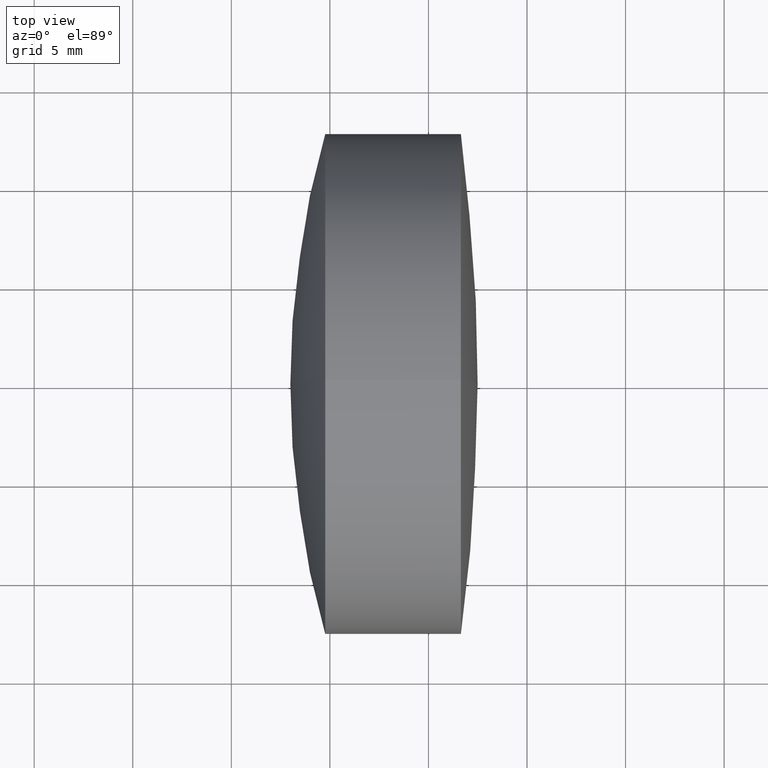
[diagram: clean part render]
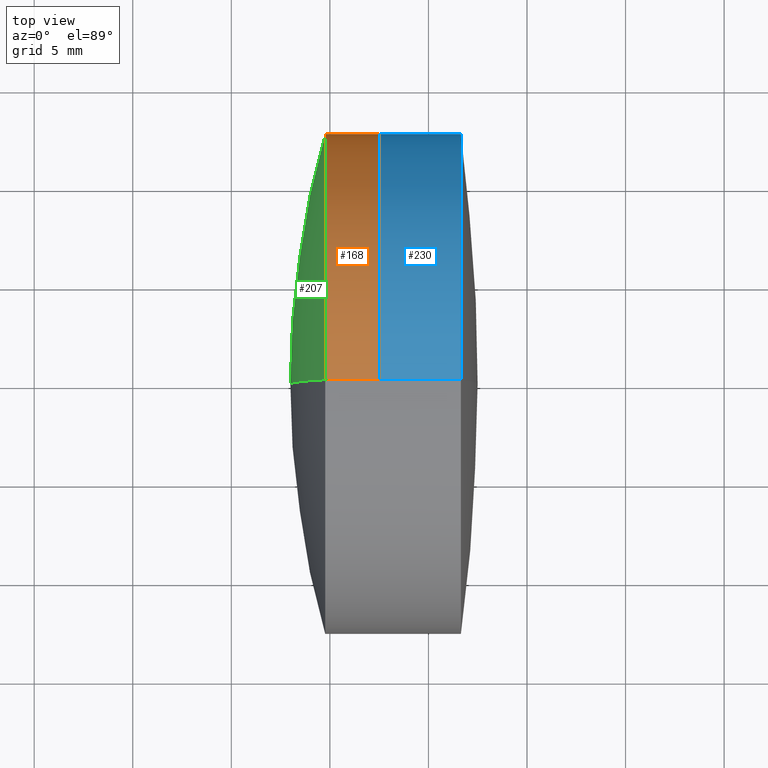
[diagram: same view with three faces highlighted in distinct colors, each labeled with its STEP entity id]
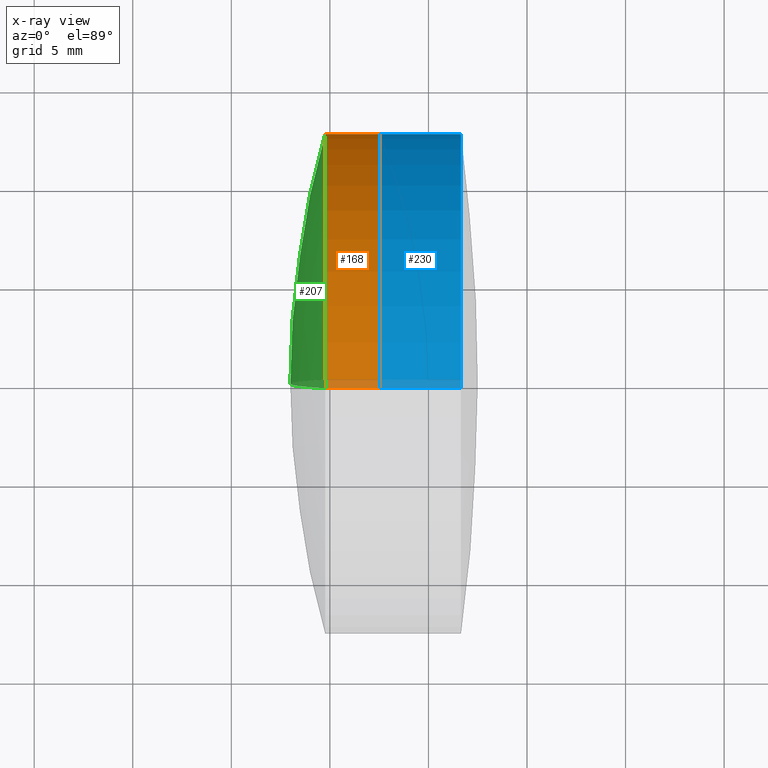
[diagram: x-ray of the same camera — body ghosted, the three highlighted faces saturated]
A machine part, top view with three faces highlighted in distinct colors.
The next image is the same camera in x-ray (body ghosted, the three faces saturated) — at least one of them is partly hidden behind the body in this view.
Their STEP definitions:

[orange] entity #168 — the highlighted cylindrical surface (partial cylindrical patch) has radius 12.7 mm, axis along (-1, -0, -0).
#3 = EDGE_LOOP ( 'NONE', ( #334, #54, #169, #271 ) ) ;
#6 = DIRECTION ( 'NONE',  ( -1.000000000000000000, -0.0000000000000000000, -0.0000000000000000000 ) ) ;
#27 = DIRECTION ( 'NONE',  ( 0.0000000000000000000, 0.0000000000000000000, 1.000000000000000000 ) ) ;
#40 = CARTESIAN_POINT ( 'NONE',  ( 161.8331716928335000, 0.0000000000000000000, 0.0000000000000000000 ) ) ;
#47 = LINE ( 'NONE', #77, #110 ) ;
#54 = ORIENTED_EDGE ( 'NONE', *, *, #235, .T. ) ;
#74 = EDGE_CURVE ( 'NONE', #224, #307, #186, .T. ) ;
#77 = CARTESIAN_POINT ( 'NONE',  ( 161.8331716928335000, 1.555301434917138000E-015, -12.69999999999999600 ) ) ;
#82 = EDGE_CURVE ( 'NONE', #259, #224, #179, .T. ) ;
#87 = DIRECTION ( 'NONE',  ( -1.000000000000000000, -0.0000000000000000000, -0.0000000000000000000 ) ) ;
#91 = FACE_OUTER_BOUND ( 'NONE', #3, .T. ) ;
#97 = CARTESIAN_POINT ( 'NONE',  ( 239.7637544197977200, 0.0000000000000000000, 0.0000000000000000000 ) ) ;
#108 = CARTESIAN_POINT ( 'NONE',  ( 242.5270405041353300, 1.555301434917138000E-015, -12.69999999999999600 ) ) ;
#110 = VECTOR ( 'NONE', #128, 1000.000000000000000 ) ;
#114 = AXIS2_PLACEMENT_3D ( 'NONE', #184, #346, #27 ) ;
#122 = CARTESIAN_POINT ( 'NONE',  ( 239.7637544197977200, 0.0000000000000000000, 12.69999999999999900 ) ) ;
#128 = DIRECTION ( 'NONE',  ( -1.000000000000000000, -0.0000000000000000000, -0.0000000000000000000 ) ) ;
#134 = DIRECTION ( 'NONE',  ( 0.0000000000000000000, 0.0000000000000000000, 1.000000000000000000 ) ) ;
#159 = CARTESIAN_POINT ( 'NONE',  ( 239.7637544197977200, 1.555301434917138400E-015, -12.70000000000000300 ) ) ;
#160 = VERTEX_POINT ( 'NONE', #108 ) ;
#161 = CARTESIAN_POINT ( 'NONE',  ( 161.8331716928335000, 0.0000000000000000000, 12.69999999999999600 ) ) ;
#164 = VECTOR ( 'NONE', #6, 1000.000000000000000 ) ;
#168 = ADVANCED_FACE ( 'NONE', ( #91 ), #335, .T. ) ;
#169 = ORIENTED_EDGE ( 'NONE', *, *, #74, .F. ) ;
#178 = CIRCLE ( 'NONE', #114, 12.69999999999999600 ) ;
#179 = LINE ( 'NONE', #161, #164 ) ;
#184 = CARTESIAN_POINT ( 'NONE',  ( 242.5270405041353300, 0.0000000000000000000, 0.0000000000000000000 ) ) ;
#186 = CIRCLE ( 'NONE', #221, 12.69999999999999600 ) ;
#211 = CARTESIAN_POINT ( 'NONE',  ( 242.5270405041353300, 0.0000000000000000000, 12.69999999999999600 ) ) ;
#221 = AXIS2_PLACEMENT_3D ( 'NONE', #97, #87, #134 ) ;
#224 = VERTEX_POINT ( 'NONE', #122 ) ;
#235 = EDGE_CURVE ( 'NONE', #160, #307, #47, .T. ) ;
#252 = AXIS2_PLACEMENT_3D ( 'NONE', #40, #328, #273 ) ;
#259 = VERTEX_POINT ( 'NONE', #211 ) ;
#271 = ORIENTED_EDGE ( 'NONE', *, *, #82, .F. ) ;
#273 = DIRECTION ( 'NONE',  ( 0.0000000000000000000, 0.0000000000000000000, 1.000000000000000000 ) ) ;
#301 = EDGE_CURVE ( 'NONE', #259, #160, #178, .T. ) ;
#307 = VERTEX_POINT ( 'NONE', #159 ) ;
#328 = DIRECTION ( 'NONE',  ( -1.000000000000000000, -0.0000000000000000000, -0.0000000000000000000 ) ) ;
#334 = ORIENTED_EDGE ( 'NONE', *, *, #301, .T. ) ;
#335 = CYLINDRICAL_SURFACE ( 'NONE', #252, 12.69999999999999600 ) ;
#346 = DIRECTION ( 'NONE',  ( -1.000000000000000000, -0.0000000000000000000, -0.0000000000000000000 ) ) ;

[blue] entity #230 — the highlighted cylindrical surface (partial cylindrical patch) has radius 12.7 mm, axis along (-1, -0, -0).
#8 = AXIS2_PLACEMENT_3D ( 'NONE', #249, #315, #22 ) ;
#13 = AXIS2_PLACEMENT_3D ( 'NONE', #302, #214, #212 ) ;
#22 = DIRECTION ( 'NONE',  ( 0.0000000000000000000, 0.0000000000000000000, 1.000000000000000000 ) ) ;
#29 = VERTEX_POINT ( 'NONE', #189 ) ;
#44 = CARTESIAN_POINT ( 'NONE',  ( 242.5270405041353300, 0.0000000000000000000, 12.69999999999999200 ) ) ;
#50 = DIRECTION ( 'NONE',  ( -1.000000000000000000, -0.0000000000000000000, -0.0000000000000000000 ) ) ;
#52 = VERTEX_POINT ( 'NONE', #127 ) ;
#55 = VERTEX_POINT ( 'NONE', #340 ) ;
#57 = CIRCLE ( 'NONE', #13, 12.69999999999998900 ) ;
#58 = DIRECTION ( 'NONE',  ( -1.000000000000000000, -0.0000000000000000000, -0.0000000000000000000 ) ) ;
#102 = ORIENTED_EDGE ( 'NONE', *, *, #327, .F. ) ;
#118 = VECTOR ( 'NONE', #58, 1000.000000000000000 ) ;
#127 = CARTESIAN_POINT ( 'NONE',  ( 246.6476286759386200, 1.555301434917137400E-015, -12.69999999999998900 ) ) ;
#149 = CIRCLE ( 'NONE', #8, 12.69999999999999200 ) ;
#150 = DIRECTION ( 'NONE',  ( -1.000000000000000000, -0.0000000000000000000, -0.0000000000000000000 ) ) ;
#166 = AXIS2_PLACEMENT_3D ( 'NONE', #187, #150, #248 ) ;
#167 = ORIENTED_EDGE ( 'NONE', *, *, #282, .F. ) ;
#177 = CARTESIAN_POINT ( 'NONE',  ( -0.5519199926577972300, 0.0000000000000000000, 12.69999999999999000 ) ) ;
#187 = CARTESIAN_POINT ( 'NONE',  ( -0.5519199926577972300, 0.0000000000000000000, 0.0000000000000000000 ) ) ;
#189 = CARTESIAN_POINT ( 'NONE',  ( 246.6476286759386200, 0.0000000000000000000, 12.69999999999998900 ) ) ;
#192 = CYLINDRICAL_SURFACE ( 'NONE', #166, 12.69999999999999000 ) ;
#196 = ORIENTED_EDGE ( 'NONE', *, *, #344, .T. ) ;
#198 = ORIENTED_EDGE ( 'NONE', *, *, #241, .T. ) ;
#212 = DIRECTION ( 'NONE',  ( 0.0000000000000000000, 0.0000000000000000000, 1.000000000000000000 ) ) ;
#214 = DIRECTION ( 'NONE',  ( -1.000000000000000000, -0.0000000000000000000, -0.0000000000000000000 ) ) ;
#230 = ADVANCED_FACE ( 'NONE', ( #266 ), #192, .T. ) ;
#234 = CARTESIAN_POINT ( 'NONE',  ( -0.5519199926577972300, 1.555301434917137400E-015, -12.69999999999999000 ) ) ;
#241 = EDGE_CURVE ( 'NONE', #29, #52, #57, .T. ) ;
#248 = DIRECTION ( 'NONE',  ( 0.0000000000000000000, 0.0000000000000000000, 1.000000000000000000 ) ) ;
#249 = CARTESIAN_POINT ( 'NONE',  ( 242.5270405041353300, 0.0000000000000000000, 0.0000000000000000000 ) ) ;
#250 = EDGE_LOOP ( 'NONE', ( #198, #196, #102, #167 ) ) ;
#254 = LINE ( 'NONE', #177, #292 ) ;
#266 = FACE_OUTER_BOUND ( 'NONE', #250, .T. ) ;
#280 = VERTEX_POINT ( 'NONE', #44 ) ;
#282 = EDGE_CURVE ( 'NONE', #29, #280, #254, .T. ) ;
#292 = VECTOR ( 'NONE', #50, 1000.000000000000000 ) ;
#302 = CARTESIAN_POINT ( 'NONE',  ( 246.6476286759386200, 0.0000000000000000000, 0.0000000000000000000 ) ) ;
#312 = LINE ( 'NONE', #234, #118 ) ;
#315 = DIRECTION ( 'NONE',  ( -1.000000000000000000, -0.0000000000000000000, -0.0000000000000000000 ) ) ;
#327 = EDGE_CURVE ( 'NONE', #280, #55, #149, .T. ) ;
#340 = CARTESIAN_POINT ( 'NONE',  ( 242.5270405041353300, 1.555301434917137800E-015, -12.69999999999999600 ) ) ;
#344 = EDGE_CURVE ( 'NONE', #52, #55, #312, .T. ) ;

[green] entity #207 — the highlighted spherical surface has radius 46.5 mm.
#17 = AXIS2_PLACEMENT_3D ( 'NONE', #56, #73, #48 ) ;
#34 = ORIENTED_EDGE ( 'NONE', *, *, #67, .F. ) ;
#35 = ORIENTED_EDGE ( 'NONE', *, *, #101, .T. ) ;
#48 = DIRECTION ( 'NONE',  ( 0.0000000000000000000, 0.0000000000000000000, 1.000000000000000000 ) ) ;
#56 = CARTESIAN_POINT ( 'NONE',  ( 284.4958458084194000, 0.0000000000000000000, -3.503633151461065400E-015 ) ) ;
#64 = CIRCLE ( 'NONE', #188, 46.50000000000003600 ) ;
#67 = EDGE_CURVE ( 'NONE', #224, #237, #64, .T. ) ;
#73 = DIRECTION ( 'NONE',  ( 0.0000000000000000000, 1.000000000000000000, 0.0000000000000000000 ) ) ;
#74 = EDGE_CURVE ( 'NONE', #224, #307, #186, .T. ) ;
#87 = DIRECTION ( 'NONE',  ( -1.000000000000000000, -0.0000000000000000000, -0.0000000000000000000 ) ) ;
#88 = DIRECTION ( 'NONE',  ( 0.0000000000000000000, -1.224646799147353200E-016, 1.000000000000000000 ) ) ;
#97 = CARTESIAN_POINT ( 'NONE',  ( 239.7637544197977200, 0.0000000000000000000, 0.0000000000000000000 ) ) ;
#101 = EDGE_CURVE ( 'NONE', #307, #237, #203, .T. ) ;
#122 = CARTESIAN_POINT ( 'NONE',  ( 239.7637544197977200, 0.0000000000000000000, 12.69999999999999900 ) ) ;
#134 = DIRECTION ( 'NONE',  ( 0.0000000000000000000, 0.0000000000000000000, 1.000000000000000000 ) ) ;
#153 = CARTESIAN_POINT ( 'NONE',  ( 237.9958458084193800, 0.0000000000000000000, -6.563293434434670700E-016 ) ) ;
#154 = AXIS2_PLACEMENT_3D ( 'NONE', #242, #272, #88 ) ;
#155 = SPHERICAL_SURFACE ( 'NONE', #17, 46.50000000000003600 ) ;
#159 = CARTESIAN_POINT ( 'NONE',  ( 239.7637544197977200, 1.555301434917138400E-015, -12.70000000000000300 ) ) ;
#170 = EDGE_LOOP ( 'NONE', ( #262, #35, #34 ) ) ;
#186 = CIRCLE ( 'NONE', #221, 12.69999999999999600 ) ;
#188 = AXIS2_PLACEMENT_3D ( 'NONE', #216, #225, #343 ) ;
#203 = CIRCLE ( 'NONE', #154, 46.50000000000003600 ) ;
#207 = ADVANCED_FACE ( 'NONE', ( #329 ), #155, .T. ) ;
#216 = CARTESIAN_POINT ( 'NONE',  ( 284.4958458084194000, 0.0000000000000000000, -3.503633151461065400E-015 ) ) ;
#221 = AXIS2_PLACEMENT_3D ( 'NONE', #97, #87, #134 ) ;
#224 = VERTEX_POINT ( 'NONE', #122 ) ;
#225 = DIRECTION ( 'NONE',  ( 0.0000000000000000000, -1.000000000000000000, 0.0000000000000000000 ) ) ;
#237 = VERTEX_POINT ( 'NONE', #153 ) ;
#242 = CARTESIAN_POINT ( 'NONE',  ( 284.4958458084194000, 0.0000000000000000000, -3.503633151461065400E-015 ) ) ;
#262 = ORIENTED_EDGE ( 'NONE', *, *, #74, .T. ) ;
#272 = DIRECTION ( 'NONE',  ( -0.0000000000000000000, 1.000000000000000000, 1.224646799147353200E-016 ) ) ;
#307 = VERTEX_POINT ( 'NONE', #159 ) ;
#329 = FACE_OUTER_BOUND ( 'NONE', #170, .T. ) ;
#343 = DIRECTION ( 'NONE',  ( 0.0000000000000000000, 0.0000000000000000000, -1.000000000000000000 ) ) ;